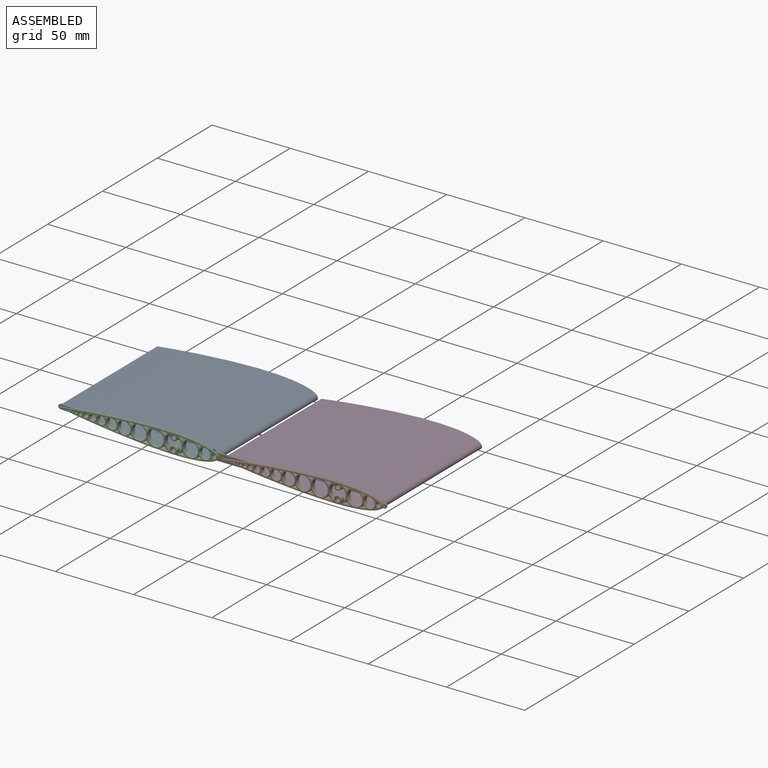
[diagram: assembled view]
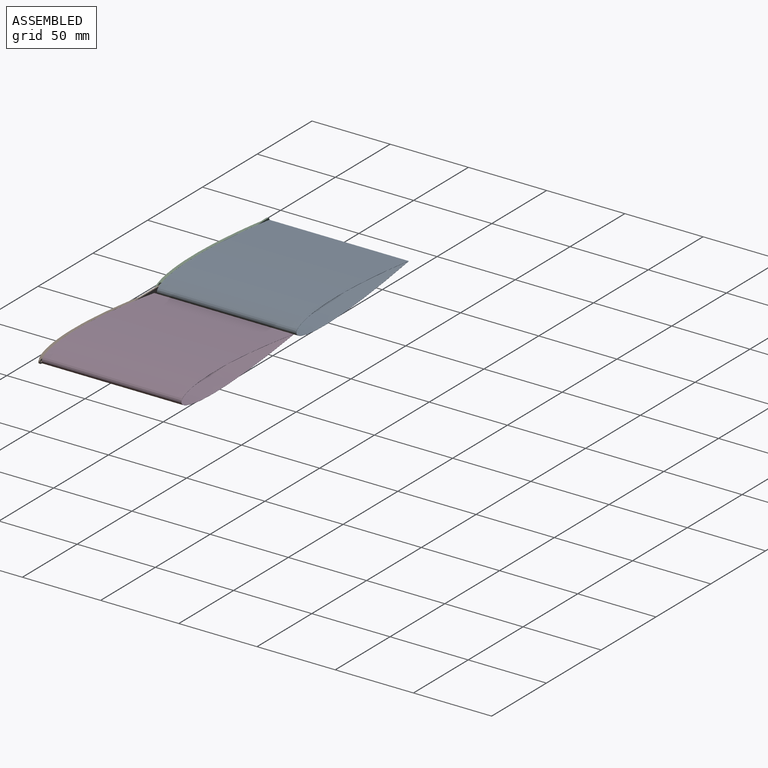
[diagram: assembled view, second angle]
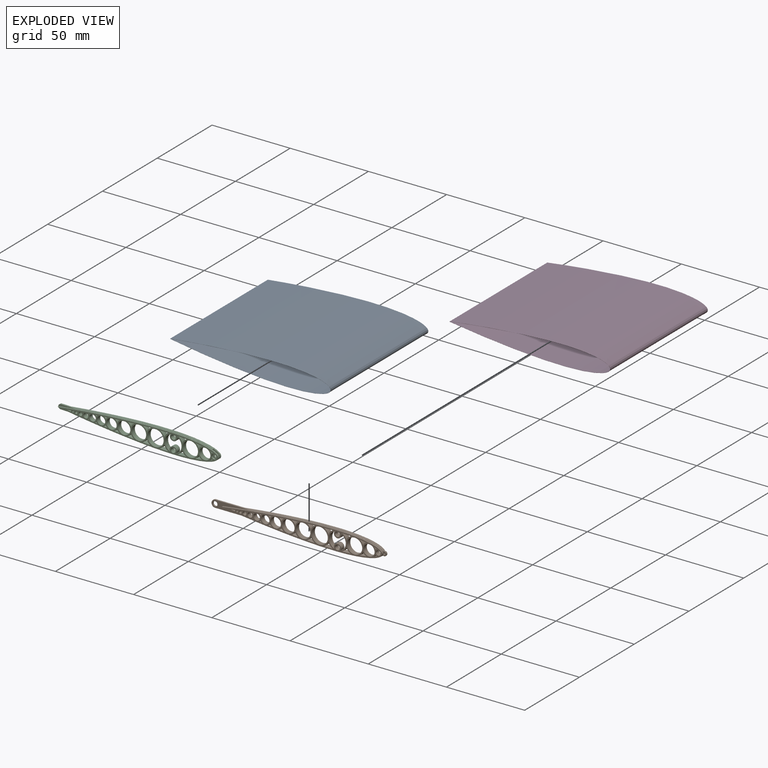
[diagram: exploded view]
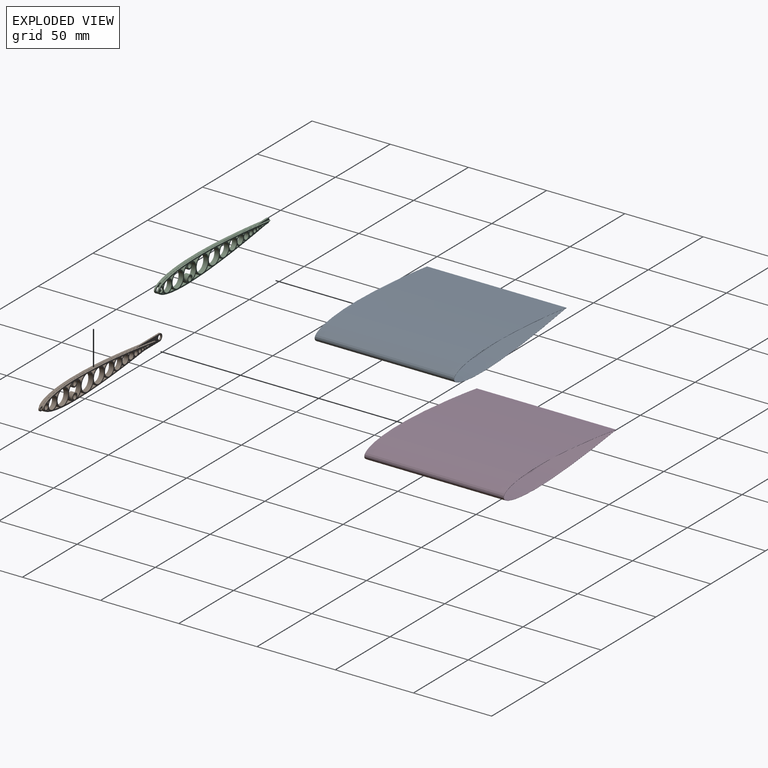
[diagram: exploded view, second angle]
ASSEMBLY  parts=4 mates=3
PART A: 8 faces, bbox 102.7x89.1x12.5 mm
  f0: extruded ~102.61x89.1mm, area 9301.2mm2, adj f1,f5,f6,f7
  f1: cylinder r=0.1mm len=89.1mm, axis (0,1,0), area 1.6mm2, adj f0,f2,f6,f7
  f2: extruded ~102.61x89.1mm, area 9301.2mm2, adj f1,f5,f6,f7
  f3: extruded ~102.5x89.1mm, area 9287.7mm2, adj f4,f6,f7
  f4: extruded ~102.5x89.1mm, area 9287.7mm2, adj f3,f6,f7
  f5: cylinder r=0.1mm len=89.1mm, axis (0,1,0), area 25.4mm2, adj f0,f2,f6,f7
  f6: plane 102.7x12.5mm, normal (0,-1,0), area 21.1mm2, adj f0,f1,f2,f3,f4,f5
  f7: plane 102.7x12.5mm, normal (0,1,0), area 21.1mm2, adj f0,f1,f2,f3,f4,f5
PART B: 154 faces, bbox 111.8x3x12.5 mm
  f0: extruded ~2.08x1.03mm, area 2.2mm2, adj f1,f29,f143,f145
  f1: extruded ~9.57x1.31mm, area 9.9mm2, adj f0,f2,f143,f145
  f2: extruded ~9.57x1.31mm, area 9.9mm2, adj f1,f3,f143,f145
  f3: extruded ~2.08x1.03mm, area 2.2mm2, adj f2,f4,f143,f145
  f4: extruded ~2.68x1.03mm, area 2.8mm2, adj f3,f5,f143,f145
  f5: extruded ~3.42x1.03mm, area 3.5mm2, adj f4,f6,f143,f145
  f6: extruded ~4.32x1.03mm, area 4.5mm2, adj f5,f7,f143,f145
  f7: extruded ~5.4x1.03mm, area 5.6mm2, adj f6,f8,f143,f145
  f8: extruded ~6.65x1.03mm, area 6.8mm2, adj f7,f9,f143,f145
  f9: extruded ~8.03x1.03mm, area 8.3mm2, adj f8,f10,f143,f145
  f10: extruded ~9.47x1.03mm, area 9.7mm2, adj f9,f11,f143,f145
  f11: extruded ~10.77x1.03mm, area 11mm2, adj f10,f12,f143,f145
  f12: extruded ~11.59x1.03mm, area 11.9mm2, adj f11,f13,f143,f145
  f13: extruded ~11.42x1.03mm, area 11.7mm2, adj f12,f14,f143,f145
  f14: extruded ~9.7x1.4mm, area 10.1mm2, adj f13,f15,f143,f145
  f15: extruded ~6.29x2.42mm, area 7mm2, adj f14,f16,f143,f145
  f16: extruded ~1.82x1.12mm, area 2.3mm2, adj f15,f17,f143,f145
  f17: extruded ~1.82x1.12mm, area 2.3mm2, adj f16,f18,f143,f145
  f18: extruded ~6.29x2.42mm, area 7mm2, adj f17,f19,f143,f145
  f19: extruded ~9.7x1.4mm, area 10.1mm2, adj f18,f20,f143,f145
  f20: extruded ~11.42x1.03mm, area 11.7mm2, adj f19,f21,f143,f145
  f21: extruded ~11.59x1.03mm, area 11.9mm2, adj f20,f22,f143,f145
  f22: extruded ~10.77x1.03mm, area 11mm2, adj f21,f23,f143,f145
  f23: extruded ~9.47x1.03mm, area 9.7mm2, adj f22,f24,f143,f145
  f24: extruded ~8.03x1.03mm, area 8.3mm2, adj f23,f25,f143,f145
  f25: extruded ~6.65x1.03mm, area 6.8mm2, adj f24,f26,f143,f145
  f26: extruded ~5.4x1.03mm, area 5.6mm2, adj f25,f27,f143,f145
  f27: extruded ~4.32x1.03mm, area 4.5mm2, adj f26,f28,f143,f145
  f28: extruded ~3.42x1.03mm, area 3.5mm2, adj f27,f29,f143,f145
  f29: extruded ~2.68x1.03mm, area 2.8mm2, adj f0,f28,f143,f145
  f30: extruded ~2.08x1.03mm, area 2.2mm2, adj f31,f141,f142,f144
  f31: extruded ~9.57x1.31mm, area 9.9mm2, adj f30,f32,f142,f144
  f32: extruded ~9.57x1.31mm, area 9.9mm2, adj f31,f33,f142,f144
  f33: extruded ~2.08x1.03mm, area 2.2mm2, adj f32,f34,f142,f144
  f34: extruded ~2.68x1.03mm, area 2.8mm2, adj f33,f35,f142,f144
  f35: extruded ~3.42x1.03mm, area 3.5mm2, adj f34,f36,f142,f144
  f36: extruded ~4.32x1.03mm, area 4.5mm2, adj f35,f37,f142,f144
  f37: extruded ~5.4x1.03mm, area 5.6mm2, adj f36,f38,f142,f144
  f38: extruded ~6.65x1.03mm, area 6.8mm2, adj f37,f39,f142,f144
  f39: extruded ~8.03x1.03mm, area 8.3mm2, adj f38,f40,f142,f144
  f40: extruded ~9.47x1.03mm, area 9.7mm2, adj f39,f41,f142,f144
  f41: extruded ~10.77x1.03mm, area 11mm2, adj f40,f42,f142,f144
  f42: extruded ~11.59x1.03mm, area 11.9mm2, adj f41,f43,f142,f144
  f43: extruded ~11.42x1.03mm, area 11.7mm2, adj f42,f44,f142,f144
  f44: extruded ~9.7x1.4mm, area 10.1mm2, adj f43,f45,f142,f144
  f45: extruded ~6.29x2.42mm, area 7mm2, adj f44,f46,f142,f144
  f46: extruded ~1.82x1.12mm, area 2.3mm2, adj f45,f47,f142,f144
  f47: extruded ~1.82x1.12mm, area 2.3mm2, adj f46,f48,f142,f144
  f48: extruded ~6.29x2.42mm, area 7mm2, adj f47,f49,f142,f144
  f49: extruded ~9.7x1.4mm, area 10.1mm2, adj f48,f50,f142,f144
  f50: extruded ~11.42x1.03mm, area 11.7mm2, adj f49,f51,f142,f144
  f51: extruded ~11.59x1.03mm, area 11.9mm2, adj f50,f52,f142,f144
  f52: extruded ~10.77x1.03mm, area 11mm2, adj f51,f53,f142,f144
  f53: extruded ~9.47x1.03mm, area 9.7mm2, adj f52,f54,f142,f144
  f54: extruded ~8.03x1.03mm, area 8.3mm2, adj f53,f55,f142,f144
  f55: extruded ~6.65x1.03mm, area 6.8mm2, adj f54,f56,f142,f144
  f56: extruded ~5.4x1.03mm, area 5.6mm2, adj f55,f57,f142,f144
  f57: extruded ~4.32x1.03mm, area 4.5mm2, adj f56,f58,f142,f144
  f58: extruded ~3.42x1.03mm, area 3.5mm2, adj f57,f141,f142,f144
  f59: extruded ~3x1.69mm, area 5.4mm2, adj f60,f105,f142,f143
  f60: cylinder r=4.35mm len=3mm, axis (0,1,0), area 4.5mm2, adj f59,f105,f142,f143
  f61: extruded ~3x1.69mm, area 5.4mm2, adj f62,f106,f142,f143
  f62: cylinder r=2.3mm len=3mm, axis (0,1,0), area 3.5mm2, adj f61,f106,f142,f143
  f63: extruded ~4.07x3mm, area 12.3mm2, adj f64,f107,f142,f143
  f64: cylinder r=4.35mm len=3mm, axis (0,1,0), area 9mm2, adj f63,f107,f142,f143
  f65: extruded ~4.07x3mm, area 12.3mm2, adj f66,f109,f142,f143
  f66: cylinder r=5.66mm len=3mm, axis (0,1,0), area 9.9mm2, adj f65,f109,f142,f143
  f67: extruded ~4.88x3mm, area 14.7mm2, adj f68,f110,f142,f143
  f68: cylinder r=5.98mm len=3mm, axis (0,1,0), area 11.7mm2, adj f67,f110,f142,f143
  f69: extruded ~4.88x3mm, area 14.7mm2, adj f70,f111,f142,f143
  f70: cylinder r=5.45mm len=3mm, axis (0,1,0), area 11.2mm2, adj f69,f111,f142,f143
  f71: extruded ~3.96x3mm, area 11.9mm2, adj f72,f112,f142,f143
  f72: cylinder r=5.45mm len=3mm, axis (0,1,0), area 9.6mm2, adj f71,f112,f142,f143
  f73: extruded ~3.96x3mm, area 11.9mm2, adj f74,f114,f142,f143
  f74: cylinder r=4.77mm len=3mm, axis (0,1,0), area 9.1mm2, adj f73,f114,f142,f143
  f75: extruded ~3x2.96mm, area 8.9mm2, adj f76,f116,f142,f143
  f76: cylinder r=4.07mm len=3mm, axis (0,1,0), area 6.8mm2, adj f75,f116,f142,f143
  f77: extruded ~3x2.96mm, area 8.9mm2, adj f78,f117,f142,f143
  f78: cylinder r=4.77mm len=3mm, axis (0,1,0), area 7.2mm2, adj f77,f117,f142,f143
  f79: extruded ~3x2.04mm, area 6.1mm2, adj f80,f118,f142,f143
  f80: cylinder r=4.07mm len=3mm, axis (0,1,0), area 5mm2, adj f79,f118,f142,f143
  f81: extruded ~3x2.04mm, area 6.1mm2, adj f82,f120,f142,f143
  f82: cylinder r=3.41mm len=3mm, axis (0,1,0), area 4.7mm2, adj f81,f120,f142,f143
  f83: extruded ~3x1.25mm, area 3.8mm2, adj f84,f122,f142,f143
  f84: cylinder r=2.83mm len=3mm, axis (0,1,0), area 2.9mm2, adj f83,f122,f142,f143
  f85: extruded ~3x1.25mm, area 3.8mm2, adj f86,f123,f142,f143
  f86: cylinder r=3.41mm len=3mm, axis (0,1,0), area 3.1mm2, adj f85,f123,f142,f143
  f87: cylinder r=5.34mm len=9.93mm, axis (0,1,0), area 38.2mm2, adj f88,f125,f142,f143
  f88: cylinder r=2.3mm len=4.6mm, axis (0,1,0), area 28.6mm2, adj f87,f89,f142,f143
  f89: cylinder r=5.34mm len=9.85mm, axis (0,1,0), area 37.6mm2, adj f88,f125,f142,f143
  f90: extruded ~5.47x3mm, area 16.4mm2, adj f91,f126,f142,f143
  f91: cylinder r=6.14mm len=3.18mm, axis (0,1,0), area 12.8mm2, adj f90,f126,f142,f143
  f92: extruded ~5.33x3mm, area 16mm2, adj f93,f128,f142,f143
  f93: cylinder r=5.66mm len=3mm, axis (0,1,0), area 12.2mm2, adj f92,f128,f142,f143
  f94: extruded ~5.33x3mm, area 16mm2, adj f95,f130,f142,f143
  f95: cylinder r=6.14mm len=3.15mm, axis (0,1,0), area 12.6mm2, adj f94,f130,f142,f143
  f96: extruded ~5.47x3mm, area 16.4mm2, adj f97,f132,f142,f143
  f97: cylinder r=5.98mm len=3.1mm, axis (0,1,0), area 12.7mm2, adj f96,f132,f142,f143
  f98: extruded ~3x0.61mm, area 1.8mm2, adj f99,f134,f142,f143
  f99: cylinder r=2.83mm len=3mm, axis (0,1,0), area 1.5mm2, adj f98,f134,f142,f143
  f100: extruded ~3x0.61mm, area 1.8mm2, adj f101,f136,f142,f143
  f101: cylinder r=2.33mm len=3mm, axis (0,1,0), area 1.4mm2, adj f100,f136,f142,f143
  f102: extruded ~3x2.71mm, area 8.2mm2, adj f103,f140,f142,f143
  f103: cylinder r=1.32mm len=3mm, axis (0,1,0), area 2.2mm2, adj f102,f140,f142,f143
  f104: cylinder r=1.5mm len=3mm, axis (0,1,0), area 28.3mm2, adj f142,f143
  f105: cylinder r=2.3mm len=3mm, axis (0,1,0), area 3.5mm2, adj f59,f60,f142,f143
  f106: cylinder r=4.35mm len=3mm, axis (0,1,0), area 4.5mm2, adj f61,f62,f142,f143
  f107: cylinder r=5.66mm len=3mm, axis (0,1,0), area 9.9mm2, adj f63,f64,f142,f143
  f108: cylinder r=3.55mm len=7.1mm, axis (0,1,0), area 66.9mm2, adj f142,f143
  f109: cylinder r=4.35mm len=3mm, axis (0,1,0), area 9mm2, adj f65,f66,f142,f143
  f110: cylinder r=5.45mm len=3mm, axis (0,1,0), area 11.2mm2, adj f67,f68,f142,f143
  f111: cylinder r=5.98mm len=3mm, axis (0,1,0), area 11.7mm2, adj f69,f70,f142,f143
  f112: cylinder r=4.77mm len=3mm, axis (0,1,0), area 9.1mm2, adj f71,f72,f142,f143
  f113: cylinder r=4.65mm len=9.3mm, axis (0,1,0), area 87.7mm2, adj f142,f143
  f114: cylinder r=5.45mm len=3mm, axis (0,1,0), area 9.6mm2, adj f73,f74,f142,f143
  f115: cylinder r=3.97mm len=7.94mm, axis (0,1,0), area 74.8mm2, adj f142,f143
  f116: cylinder r=4.77mm len=3mm, axis (0,1,0), area 7.2mm2, adj f75,f76,f142,f143
  f117: cylinder r=4.07mm len=3mm, axis (0,1,0), area 6.8mm2, adj f77,f78,f142,f143
  f118: cylinder r=3.41mm len=3mm, axis (0,1,0), area 4.7mm2, adj f79,f80,f142,f143
  f119: cylinder r=3.27mm len=6.54mm, axis (0,1,0), area 61.6mm2, adj f142,f143
  f120: cylinder r=4.07mm len=3mm, axis (0,1,0), area 5mm2, adj f81,f82,f142,f143
  f121: cylinder r=2.61mm len=5.22mm, axis (0,1,0), area 49.2mm2, adj f142,f143
  f122: cylinder r=3.41mm len=3mm, axis (0,1,0), area 3.1mm2, adj f83,f84,f142,f143
  f123: cylinder r=2.83mm len=3mm, axis (0,1,0), area 2.9mm2, adj f85,f86,f142,f143
  f124: cylinder r=5.18mm len=10.36mm, axis (0,1,0), area 97.6mm2, adj f142,f143
  f125: cylinder r=2.3mm len=4.6mm, axis (0,1,0), area 28.6mm2, adj f87,f89,f142,f143
  f126: cylinder r=5.98mm len=3.1mm, axis (0,1,0), area 12.7mm2, adj f90,f91,f142,f143
  f127: cylinder r=1.5mm len=3mm, axis (0,1,0), area 28.3mm2, adj f142,f143
  f128: cylinder r=6.14mm len=3.15mm, axis (0,1,0), area 12.6mm2, adj f92,f93,f142,f143
  f129: cylinder r=4.86mm len=9.72mm, axis (0,1,0), area 91.6mm2, adj f142,f143
  f130: cylinder r=5.66mm len=3mm, axis (0,1,0), area 12.2mm2, adj f94,f95,f142,f143
  f131: cylinder r=1.5mm len=3mm, axis (0,1,0), area 28.3mm2, adj f142,f143
  f132: cylinder r=6.14mm len=3.18mm, axis (0,1,0), area 12.8mm2, adj f96,f97,f142,f143
  f133: cylinder r=1.5mm len=3mm, axis (0,1,0), area 28.3mm2, adj f142,f143
  f134: cylinder r=2.33mm len=3mm, axis (0,1,0), area 1.4mm2, adj f98,f99,f142,f143
  f135: cylinder r=2.03mm len=4.06mm, axis (0,1,0), area 38.2mm2, adj f142,f143
  f136: cylinder r=2.83mm len=3mm, axis (0,1,0), area 1.5mm2, adj f100,f101,f142,f143
  f137: cylinder r=1.12mm len=3mm, axis (0,1,0), area 21.2mm2, adj f142,f143
  f138: cylinder r=0.79mm len=3mm, axis (0,1,0), area 14.9mm2, adj f142,f143
  f139: cylinder r=0.52mm len=3mm, axis (0,1,0), area 9.8mm2, adj f142,f143
  f140: extruded ~3x2.71mm, area 8.2mm2, adj f102,f103,f142,f143
  f141: extruded ~2.68x1.03mm, area 2.8mm2, adj f30,f58,f142,f144
  f142: plane 102.5x12.3mm, normal (0,-1,0), area 317.3mm2, adj f30,f31,f32,f33,f34,f35,f36,f37
  f143: plane 102.5x12.3mm, normal (0,1,0), area 317.3mm2, adj f0,f1,f2,f3,f4,f5,f6,f7
  f144: plane 111.8x12.5mm, normal (0,-1,0), area 84.4mm2, adj f30,f31,f32,f33,f34,f35,f36,f37
  f145: plane 111.8x12.5mm, normal (0,1,0), area 84.4mm2, adj f0,f1,f2,f3,f4,f5,f6,f7
  f146: cylinder r=2.3mm len=4.6mm, axis (0,1,0), area 6.9mm2, adj f144,f145,f147,f152
  f147: plane 21.74x0.95mm, normal (0,0,-1), area 20.6mm2, adj f144,f145,f146,f148
  f148: extruded ~85.5x5.15mm, area 82.2mm2, adj f144,f145,f147,f149
  f149: cylinder r=1.4mm len=2.8mm, axis (0,1,0), area 6mm2, adj f144,f145,f148,f150
  f150: extruded ~85.5x5.15mm, area 82.2mm2, adj f144,f145,f149,f152
  f151: cylinder r=0.6mm len=1.2mm, axis (0,1,0), area 3.6mm2, adj f144,f145
  f152: plane 21.74x0.95mm, normal (0,0,1), area 20.6mm2, adj f144,f145,f146,f150
  f153: cylinder r=1.5mm len=3mm, axis (0,1,0), area 9mm2, adj f144,f145
PART C: 174 faces, bbox 102.7x3x12.5 mm
  f0: cylinder r=4.35mm len=1.29mm, axis (0,1,0), area 1.5mm2, adj f1,f77,f162,f168
  f1: cylinder r=2.3mm len=0.98mm, axis (0,1,0), area 1.1mm2, adj f0,f6,f162,f168
  f2: extruded ~1.57x0.98mm, area 1.6mm2, adj f3,f126,f162,f168
  f3: cylinder r=2.3mm len=0.98mm, axis (0,1,0), area 1.1mm2, adj f2,f4,f162,f168
  f4: cylinder r=4.35mm len=1.29mm, axis (0,1,0), area 1.5mm2, adj f3,f126,f162,f168
  f5: cylinder r=1.5mm len=3mm, axis (0,1,0), area 9.2mm2, adj f162,f168
  f6: extruded ~1.57x0.98mm, area 1.6mm2, adj f1,f77,f162,f168
  f7: cylinder r=3.55mm len=7.1mm, axis (0,1,0), area 56.9mm2, adj f161,f162,f168,f169,f170,f171
  f8: plane 98.35x12.5mm, normal (0,-1,0), area 33.5mm2, adj f44,f45,f46,f47,f48,f49,f50,f51
  f9: plane 98.35x12.5mm, normal (0,1,0), area 33.5mm2, adj f10,f11,f12,f13,f14,f15,f16,f17
  f10: extruded ~6.86x0.98mm, area 6.7mm2, adj f9,f11,f43,f162
  f11: extruded ~2.71x0.98mm, area 2.7mm2, adj f9,f10,f12,f162
  f12: extruded ~2.71x0.98mm, area 2.7mm2, adj f9,f11,f13,f162
  f13: extruded ~6.86x0.98mm, area 6.7mm2, adj f9,f12,f14,f162
  f14: extruded ~2.08x0.98mm, area 2mm2, adj f9,f13,f15,f162
  f15: extruded ~2.68x0.98mm, area 2.6mm2, adj f9,f14,f16,f162
  f16: extruded ~3.42x0.98mm, area 3.4mm2, adj f9,f15,f17,f162
  f17: extruded ~4.32x0.98mm, area 4.2mm2, adj f9,f16,f18,f162
  f18: extruded ~5.4x0.98mm, area 5.3mm2, adj f9,f17,f19,f162
  f19: extruded ~6.65x0.98mm, area 6.5mm2, adj f9,f18,f20,f162
  f20: extruded ~8.03x0.98mm, area 7.9mm2, adj f9,f19,f21,f162
  f21: extruded ~9.47x0.98mm, area 9.3mm2, adj f9,f20,f22,f162
  f22: extruded ~10.77x0.98mm, area 10.5mm2, adj f9,f21,f23,f162
  f23: extruded ~11.59x0.98mm, area 11.3mm2, adj f9,f22,f24,f162
  f24: extruded ~11.42x0.98mm, area 11.1mm2, adj f9,f23,f25,f162
  f25: extruded ~9.7x1.4mm, area 9.6mm2, adj f9,f24,f26,f162
  f26: extruded ~3.02x0.98mm, area 3.1mm2, adj f9,f25,f27,f162
  f27: extruded ~3.27x1.59mm, area 3.6mm2, adj f26,f28,f162,f168
  f28: extruded ~1.82x1.12mm, area 2.2mm2, adj f27,f29,f162,f168
  f29: extruded ~1.82x1.12mm, area 2.2mm2, adj f28,f30,f162,f168
  f30: extruded ~3.27x1.59mm, area 3.6mm2, adj f29,f31,f162,f168
  f31: extruded ~3.02x0.98mm, area 3.1mm2, adj f9,f30,f32,f162
  f32: extruded ~9.7x1.4mm, area 9.6mm2, adj f9,f31,f33,f162
  f33: extruded ~11.42x0.98mm, area 11.1mm2, adj f9,f32,f34,f162
  f34: extruded ~11.59x0.98mm, area 11.3mm2, adj f9,f33,f35,f162
  f35: extruded ~10.77x0.98mm, area 10.5mm2, adj f9,f34,f36,f162
  f36: extruded ~9.47x0.98mm, area 9.3mm2, adj f9,f35,f37,f162
  f37: extruded ~8.03x0.98mm, area 7.9mm2, adj f9,f36,f38,f162
  f38: extruded ~6.65x0.98mm, area 6.5mm2, adj f9,f37,f39,f162
  f39: extruded ~5.4x0.98mm, area 5.3mm2, adj f9,f38,f40,f162
  f40: extruded ~4.32x0.98mm, area 4.2mm2, adj f9,f39,f41,f162
  f41: extruded ~3.42x0.98mm, area 3.4mm2, adj f9,f40,f42,f162
  f42: extruded ~2.68x0.98mm, area 2.6mm2, adj f9,f41,f43,f162
  f43: extruded ~2.08x0.98mm, area 2mm2, adj f9,f10,f42,f162
  f44: extruded ~6.86x0.98mm, area 6.7mm2, adj f8,f45,f160,f161
  f45: extruded ~2.71x0.98mm, area 2.7mm2, adj f8,f44,f46,f161
  f46: extruded ~2.71x0.98mm, area 2.7mm2, adj f8,f45,f47,f161
  f47: extruded ~6.86x0.98mm, area 6.7mm2, adj f8,f46,f48,f161
  f48: extruded ~2.08x0.98mm, area 2mm2, adj f8,f47,f49,f161
  f49: extruded ~2.68x0.98mm, area 2.6mm2, adj f8,f48,f50,f161
  f50: extruded ~3.42x0.98mm, area 3.4mm2, adj f8,f49,f51,f161
  f51: extruded ~4.32x0.98mm, area 4.2mm2, adj f8,f50,f52,f161
  f52: extruded ~5.4x0.98mm, area 5.3mm2, adj f8,f51,f53,f161
  f53: extruded ~6.65x0.98mm, area 6.5mm2, adj f8,f52,f54,f161
  f54: extruded ~8.03x0.98mm, area 7.9mm2, adj f8,f53,f55,f161
  f55: extruded ~9.47x0.98mm, area 9.3mm2, adj f8,f54,f56,f161
  f56: extruded ~10.77x0.98mm, area 10.5mm2, adj f8,f55,f57,f161
  f57: extruded ~11.59x0.98mm, area 11.3mm2, adj f8,f56,f58,f161
  f58: extruded ~11.42x0.98mm, area 11.1mm2, adj f8,f57,f59,f161
  f59: extruded ~9.7x1.4mm, area 9.6mm2, adj f8,f58,f60,f161
  f60: extruded ~3.02x0.98mm, area 3.1mm2, adj f8,f59,f61,f161
  f61: extruded ~3.27x1.59mm, area 3.6mm2, adj f60,f62,f161,f169
  f62: extruded ~1.82x1.12mm, area 2.2mm2, adj f61,f63,f161,f169
  f63: extruded ~1.82x1.12mm, area 2.2mm2, adj f62,f64,f161,f169
  f64: extruded ~3.27x1.59mm, area 3.6mm2, adj f63,f65,f161,f169
  f65: extruded ~3.02x0.98mm, area 3.1mm2, adj f8,f64,f66,f161
  f66: extruded ~9.7x1.4mm, area 9.6mm2, adj f8,f65,f67,f161
  f67: extruded ~11.42x0.98mm, area 11.1mm2, adj f8,f66,f68,f161
  f68: extruded ~11.59x0.98mm, area 11.3mm2, adj f8,f67,f69,f161
  f69: extruded ~10.77x0.98mm, area 10.5mm2, adj f8,f68,f70,f161
  f70: extruded ~9.47x0.98mm, area 9.3mm2, adj f8,f69,f71,f161
  f71: extruded ~8.03x0.98mm, area 7.9mm2, adj f8,f70,f72,f161
  f72: extruded ~6.65x0.98mm, area 6.5mm2, adj f8,f71,f73,f161
  f73: extruded ~5.4x0.98mm, area 5.3mm2, adj f8,f72,f74,f161
  f74: extruded ~4.32x0.98mm, area 4.2mm2, adj f8,f73,f75,f161
  f75: extruded ~3.42x0.98mm, area 3.4mm2, adj f8,f74,f76,f161
  f76: extruded ~2.68x0.98mm, area 2.6mm2, adj f8,f75,f160,f161
  f77: extruded ~3x0.12mm, area 0.4mm2, adj f0,f6,f78,f125,f161,f162,f171,f172
  f78: cylinder r=4.35mm len=1.29mm, axis (0,1,0), area 1.5mm2, adj f77,f79,f161,f169
  f79: cylinder r=2.3mm len=0.98mm, axis (0,1,0), area 1.1mm2, adj f78,f125,f161,f169
  f80: extruded ~1.57x0.98mm, area 1.6mm2, adj f81,f126,f161,f169
  f81: cylinder r=2.3mm len=0.98mm, axis (0,1,0), area 1.1mm2, adj f80,f82,f161,f169
  f82: cylinder r=4.35mm len=1.29mm, axis (0,1,0), area 1.5mm2, adj f81,f126,f161,f169
  f83: extruded ~4.07x3mm, area 12.3mm2, adj f84,f127,f161,f162
  f84: cylinder r=4.35mm len=3mm, axis (0,1,0), area 9mm2, adj f83,f127,f161,f162
  f85: extruded ~4.07x3mm, area 12.3mm2, adj f86,f128,f161,f162
  f86: cylinder r=5.66mm len=3mm, axis (0,1,0), area 9.9mm2, adj f85,f128,f161,f162
  f87: extruded ~4.88x3mm, area 14.7mm2, adj f88,f129,f161,f162
  f88: cylinder r=5.98mm len=3mm, axis (0,1,0), area 11.7mm2, adj f87,f129,f161,f162
  f89: extruded ~4.88x3mm, area 14.7mm2, adj f90,f130,f161,f162
  f90: cylinder r=5.45mm len=3mm, axis (0,1,0), area 11.2mm2, adj f89,f130,f161,f162
  f91: extruded ~3.96x3mm, area 11.9mm2, adj f92,f131,f161,f162
  f92: cylinder r=5.45mm len=3mm, axis (0,1,0), area 9.6mm2, adj f91,f131,f161,f162
  f93: extruded ~3.96x3mm, area 11.9mm2, adj f94,f133,f161,f162
  f94: cylinder r=4.77mm len=3mm, axis (0,1,0), area 9.1mm2, adj f93,f133,f161,f162
  f95: extruded ~3x2.96mm, area 8.9mm2, adj f96,f135,f161,f162
  f96: cylinder r=4.07mm len=3mm, axis (0,1,0), area 6.8mm2, adj f95,f135,f161,f162
  f97: extruded ~3x2.96mm, area 8.9mm2, adj f98,f136,f161,f162
  f98: cylinder r=4.77mm len=3mm, axis (0,1,0), area 7.2mm2, adj f97,f136,f161,f162
  f99: extruded ~3x2.04mm, area 6.1mm2, adj f100,f137,f161,f162
  f100: cylinder r=4.07mm len=3mm, axis (0,1,0), area 5mm2, adj f99,f137,f161,f162
  f101: extruded ~3x2.04mm, area 6.1mm2, adj f102,f139,f161,f162
  f102: cylinder r=3.41mm len=3mm, axis (0,1,0), area 4.7mm2, adj f101,f139,f161,f162
  f103: extruded ~3x1.25mm, area 3.8mm2, adj f104,f141,f161,f162
  f104: cylinder r=2.83mm len=3mm, axis (0,1,0), area 2.9mm2, adj f103,f141,f161,f162
  f105: extruded ~3x1.25mm, area 3.8mm2, adj f106,f142,f161,f162
  f106: cylinder r=3.41mm len=3mm, axis (0,1,0), area 3.1mm2, adj f105,f142,f161,f162
  f107: cylinder r=5.34mm len=9.93mm, axis (0,1,0), area 38.2mm2, adj f108,f144,f161,f162
  f108: cylinder r=2.3mm len=4.6mm, axis (0,1,0), area 28.6mm2, adj f107,f109,f161,f162
  f109: cylinder r=5.34mm len=9.85mm, axis (0,1,0), area 37.6mm2, adj f108,f144,f161,f162
  f110: extruded ~5.47x3mm, area 16.4mm2, adj f111,f145,f161,f162
  f111: cylinder r=6.14mm len=3.18mm, axis (0,1,0), area 12.8mm2, adj f110,f145,f161,f162
  f112: extruded ~5.33x3mm, area 16mm2, adj f113,f147,f161,f162
  f113: cylinder r=5.66mm len=3mm, axis (0,1,0), area 12.2mm2, adj f112,f147,f161,f162
  f114: extruded ~5.33x3mm, area 16mm2, adj f115,f149,f161,f162
  f115: cylinder r=6.14mm len=3.15mm, axis (0,1,0), area 12.6mm2, adj f114,f149,f161,f162
  f116: extruded ~5.47x3mm, area 16.4mm2, adj f117,f151,f161,f162
  f117: cylinder r=5.98mm len=3.1mm, axis (0,1,0), area 12.7mm2, adj f116,f151,f161,f162
  f118: extruded ~3x0.61mm, area 1.8mm2, adj f119,f153,f161,f162
  f119: cylinder r=2.83mm len=3mm, axis (0,1,0), area 1.5mm2, adj f118,f153,f161,f162
  f120: extruded ~3x0.61mm, area 1.8mm2, adj f121,f155,f161,f162
  f121: cylinder r=2.33mm len=3mm, axis (0,1,0), area 1.4mm2, adj f120,f155,f161,f162
  f122: extruded ~3x2.71mm, area 8.2mm2, adj f123,f159,f161,f162
  f123: cylinder r=1.32mm len=3mm, axis (0,1,0), area 2.2mm2, adj f122,f159,f161,f162
  f124: cylinder r=1.5mm len=3mm, axis (0,1,0), area 9.2mm2, adj f161,f169
  f125: extruded ~1.57x0.98mm, area 1.6mm2, adj f77,f79,f161,f169
  f126: extruded ~3x0.12mm, area 0.4mm2, adj f2,f4,f80,f82,f161,f162,f170,f173
  f127: cylinder r=5.66mm len=3mm, axis (0,1,0), area 9.9mm2, adj f83,f84,f161,f162
  f128: cylinder r=4.35mm len=3mm, axis (0,1,0), area 9mm2, adj f85,f86,f161,f162
  f129: cylinder r=5.45mm len=3mm, axis (0,1,0), area 11.2mm2, adj f87,f88,f161,f162
  f130: cylinder r=5.98mm len=3mm, axis (0,1,0), area 11.7mm2, adj f89,f90,f161,f162
  f131: cylinder r=4.77mm len=3mm, axis (0,1,0), area 9.1mm2, adj f91,f92,f161,f162
  f132: cylinder r=4.65mm len=9.3mm, axis (0,1,0), area 87.7mm2, adj f161,f162
  f133: cylinder r=5.45mm len=3mm, axis (0,1,0), area 9.6mm2, adj f93,f94,f161,f162
  f134: cylinder r=3.97mm len=7.94mm, axis (0,1,0), area 74.8mm2, adj f161,f162
  f135: cylinder r=4.77mm len=3mm, axis (0,1,0), area 7.2mm2, adj f95,f96,f161,f162
  f136: cylinder r=4.07mm len=3mm, axis (0,1,0), area 6.8mm2, adj f97,f98,f161,f162
  f137: cylinder r=3.41mm len=3mm, axis (0,1,0), area 4.7mm2, adj f99,f100,f161,f162
  f138: cylinder r=3.27mm len=6.54mm, axis (0,1,0), area 61.6mm2, adj f161,f162
  f139: cylinder r=4.07mm len=3mm, axis (0,1,0), area 5mm2, adj f101,f102,f161,f162
  f140: cylinder r=2.61mm len=5.22mm, axis (0,1,0), area 49.2mm2, adj f161,f162
  f141: cylinder r=3.41mm len=3mm, axis (0,1,0), area 3.1mm2, adj f103,f104,f161,f162
  f142: cylinder r=2.83mm len=3mm, axis (0,1,0), area 2.9mm2, adj f105,f106,f161,f162
  f143: cylinder r=5.18mm len=10.36mm, axis (0,1,0), area 97.6mm2, adj f161,f162
  f144: cylinder r=2.3mm len=4.6mm, axis (0,1,0), area 28.6mm2, adj f107,f109,f161,f162
  f145: cylinder r=5.98mm len=3.1mm, axis (0,1,0), area 12.7mm2, adj f110,f111,f161,f162
  f146: cylinder r=1.5mm len=3mm, axis (0,1,0), area 28.3mm2, adj f161,f162
  f147: cylinder r=6.14mm len=3.15mm, axis (0,1,0), area 12.6mm2, adj f112,f113,f161,f162
  f148: cylinder r=4.86mm len=9.72mm, axis (0,1,0), area 91.6mm2, adj f161,f162
  f149: cylinder r=5.66mm len=3mm, axis (0,1,0), area 12.2mm2, adj f114,f115,f161,f162
  f150: cylinder r=1.5mm len=3mm, axis (0,1,0), area 28.3mm2, adj f161,f162
  f151: cylinder r=6.14mm len=3.18mm, axis (0,1,0), area 12.8mm2, adj f116,f117,f161,f162
  f152: cylinder r=1.5mm len=3mm, axis (0,1,0), area 28.3mm2, adj f161,f162
  f153: cylinder r=2.33mm len=3mm, axis (0,1,0), area 1.4mm2, adj f118,f119,f161,f162
  f154: cylinder r=2.03mm len=4.06mm, axis (0,1,0), area 38.2mm2, adj f161,f162
  f155: cylinder r=2.83mm len=3mm, axis (0,1,0), area 1.5mm2, adj f120,f121,f161,f162
  f156: cylinder r=1.12mm len=3mm, axis (0,1,0), area 21.2mm2, adj f161,f162
  f157: cylinder r=0.79mm len=3mm, axis (0,1,0), area 14.9mm2, adj f161,f162
  f158: cylinder r=0.52mm len=3mm, axis (0,1,0), area 9.8mm2, adj f161,f162
  f159: extruded ~3x2.71mm, area 8.2mm2, adj f122,f123,f161,f162
  f160: extruded ~2.08x0.98mm, area 2mm2, adj f8,f44,f76,f161
  f161: plane 102.5x12.3mm, normal (0,-1,0), area 317.3mm2, adj f7,f44,f45,f46,f47,f48,f49,f50
  f162: plane 102.5x12.3mm, normal (0,1,0), area 317.3mm2, adj f0,f1,f2,f3,f4,f5,f6,f7
  f163: plane 8.99x1.05mm, normal (0,0,1), area 9.4mm2, adj f8,f9,f164,f167
  f164: cylinder r=1.5mm len=3mm, axis (0,1,0), area 4.9mm2, adj f8,f9,f163,f165
  f165: plane 8.99x1.05mm, normal (0,0,-1), area 9.4mm2, adj f8,f9,f164,f166
  f166: extruded ~87.62x4.75mm, area 92.4mm2, adj f8,f9,f165,f172
  f167: extruded ~87.62x4.75mm, area 92.4mm2, adj f8,f9,f163,f173
  f168: plane 7.59x6.93mm, normal (0,-1,0), area 17.2mm2, adj f0,f1,f2,f3,f4,f5,f6,f7
  f169: plane 7.59x6.93mm, normal (0,1,0), area 17.2mm2, adj f7,f61,f62,f63,f64,f78,f79,f80
  f170: extruded ~2.56x1.05mm, area 2.8mm2, adj f7,f126,f168,f169
  f171: extruded ~2.56x1.05mm, area 2.8mm2, adj f7,f77,f168,f169
  f172: cylinder r=0.45mm len=1.05mm, axis (0,-1,0), area 1.5mm2, adj f8,f9,f77,f166,f168,f169
  f173: cylinder r=0.45mm len=1.05mm, axis (0,-1,0), area 1.5mm2, adj f8,f9,f126,f167,f168,f169
PART D: same geometry as A
PLACE A rot(axis=(0,1,0),1.3deg) t=(-116.3,89.63,1.08)mm
PLACE B t=(-11.34,0,0)mm
PLACE C rot(axis=(0,1,0),1.3deg) t=(-116.3,0,1.08)mm
PLACE D t=(-11.34,89.58,0)mm
MATE fastened A.f1 <-> C.f168  axis (0,-1,0) through (-65.07,0.52,-0.06)mm
MATE fastened B.f145 <-> D.f1  axis (0,1,0) through (39.91,0.48,0)mm
MATE revolute B.f153 <-> C.f5  axis (0,-1,0) through (-67.59,-0.48,0)mm
